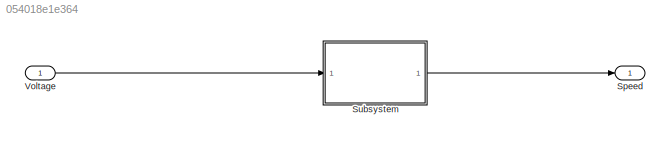
MODEL slx_054018e1e364
KIND model
CONFIG AbsTol = auto
CONFIG EnableMultiTasking = off
CONFIG FixedStep = auto
CONFIG MaxStep = auto
CONFIG MinStep = auto
CONFIG RelTol = 1e-3
CONFIG SampleTimeConstraint = Unconstrained
CONFIG SolverName = VariableStepAuto
CONFIG StartTime = 0.0
CONFIG StopTime = 10.0
WORKSPACE source: mxarray member
WORKSPACE J = 0.01
WORKSPACE K = 0.01
WORKSPACE L = 0.5
WORKSPACE R = 1
WORKSPACE b = 0.1
BLOCK [Outport] Speed
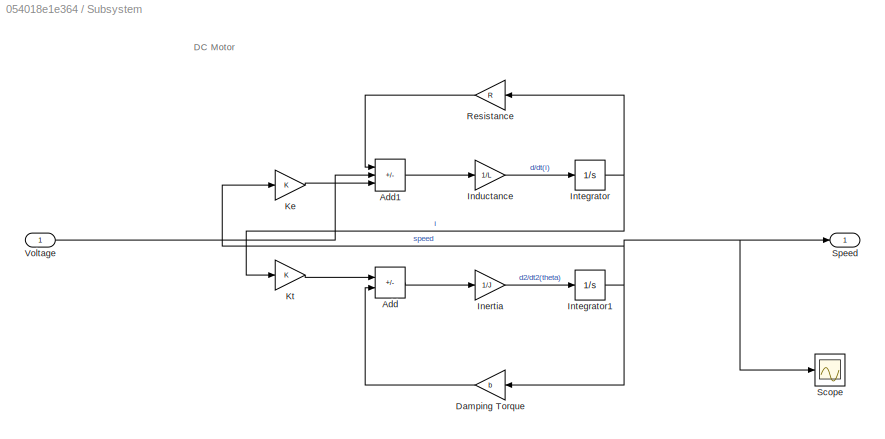
BLOCK [SubSystem] Subsystem
  Ports = [1, 1]
  RequestExecContextInheritance = off
BLOCK [Sum] Subsystem/Add
  IconShape = rectangular
  Inputs = +-
  Ports = [2, 1]
BLOCK [Sum] Subsystem/Add1
  IconShape = rectangular
  Inputs = -+-
  Ports = [3, 1]
BLOCK [Gain] Subsystem/Damping Torque
  Gain = b
  NameLocation = top
BLOCK [Gain] Subsystem/Inductance
  Gain = 1/L
BLOCK [Gain] Subsystem/Inertia
  Gain = 1/J
BLOCK [Integrator] Subsystem/Integrator
  Ports = [1, 1]
BLOCK [Integrator] Subsystem/Integrator1
  Ports = [1, 1]
BLOCK [Gain] Subsystem/Ke
  Gain = K
BLOCK [Gain] Subsystem/Kt
  Gain = K
BLOCK [Gain] Subsystem/Resistance
  Gain = R
  NameLocation = top
BLOCK [Scope] Subsystem/Scope
  Floating = off
  NumInputPorts = 1
  Ports = [1]
  ScopeSpecificationString = Simulink.scopes.TimeScopeBlockCfg('CurrentConfiguration', extmgr.ConfigurationSet(extmgr.Configuration('Core','General UI',true),extmgr.Configuration('Core','Source UI',true),extmgr.Configuration('Sources','WiredSimulink',true),extmgr.Configuration('Visuals','Time Domain',true,'SerializedDisplays',{struct('MinYLimReal','-1.00000','MaxYLimReal','1.00000','YLabelReal','','MinYLimMag','0.00000','MaxY...<+1325ch>
BLOCK [Outport] Subsystem/Speed
BLOCK [Inport] Subsystem/Voltage
BLOCK [Inport] Voltage
ANNOTATION Subsystem: DC Motor
LINE Subsystem/Add1:1 -> Subsystem/Inductance:1
LINE Subsystem/Add:1 -> Subsystem/Inertia:1
LINE Subsystem/Damping Torque:1 -> Subsystem/Add:2
LINE Subsystem/Inductance:1 -> Subsystem/Integrator:1
LINE Subsystem/Inertia:1 -> Subsystem/Integrator1:1
NET Subsystem/Integrator1:1 -> Subsystem/Damping Torque:1, Subsystem/Ke:1, Subsystem/Scope:1, Subsystem/Speed:1
NET Subsystem/Integrator:1 -> Subsystem/Kt:1, Subsystem/Resistance:1
LINE Subsystem/Ke:1 -> Subsystem/Add1:3
LINE Subsystem/Kt:1 -> Subsystem/Add:1
LINE Subsystem/Resistance:1 -> Subsystem/Add1:1
LINE Subsystem/Voltage:1 -> Subsystem/Add1:2
LINE Subsystem:1 -> Speed:1
LINE Voltage:1 -> Subsystem:1
note: NET lines group one-source signal fan-out (src -> all destinations, sorted); 1:1 wires keep LINE
